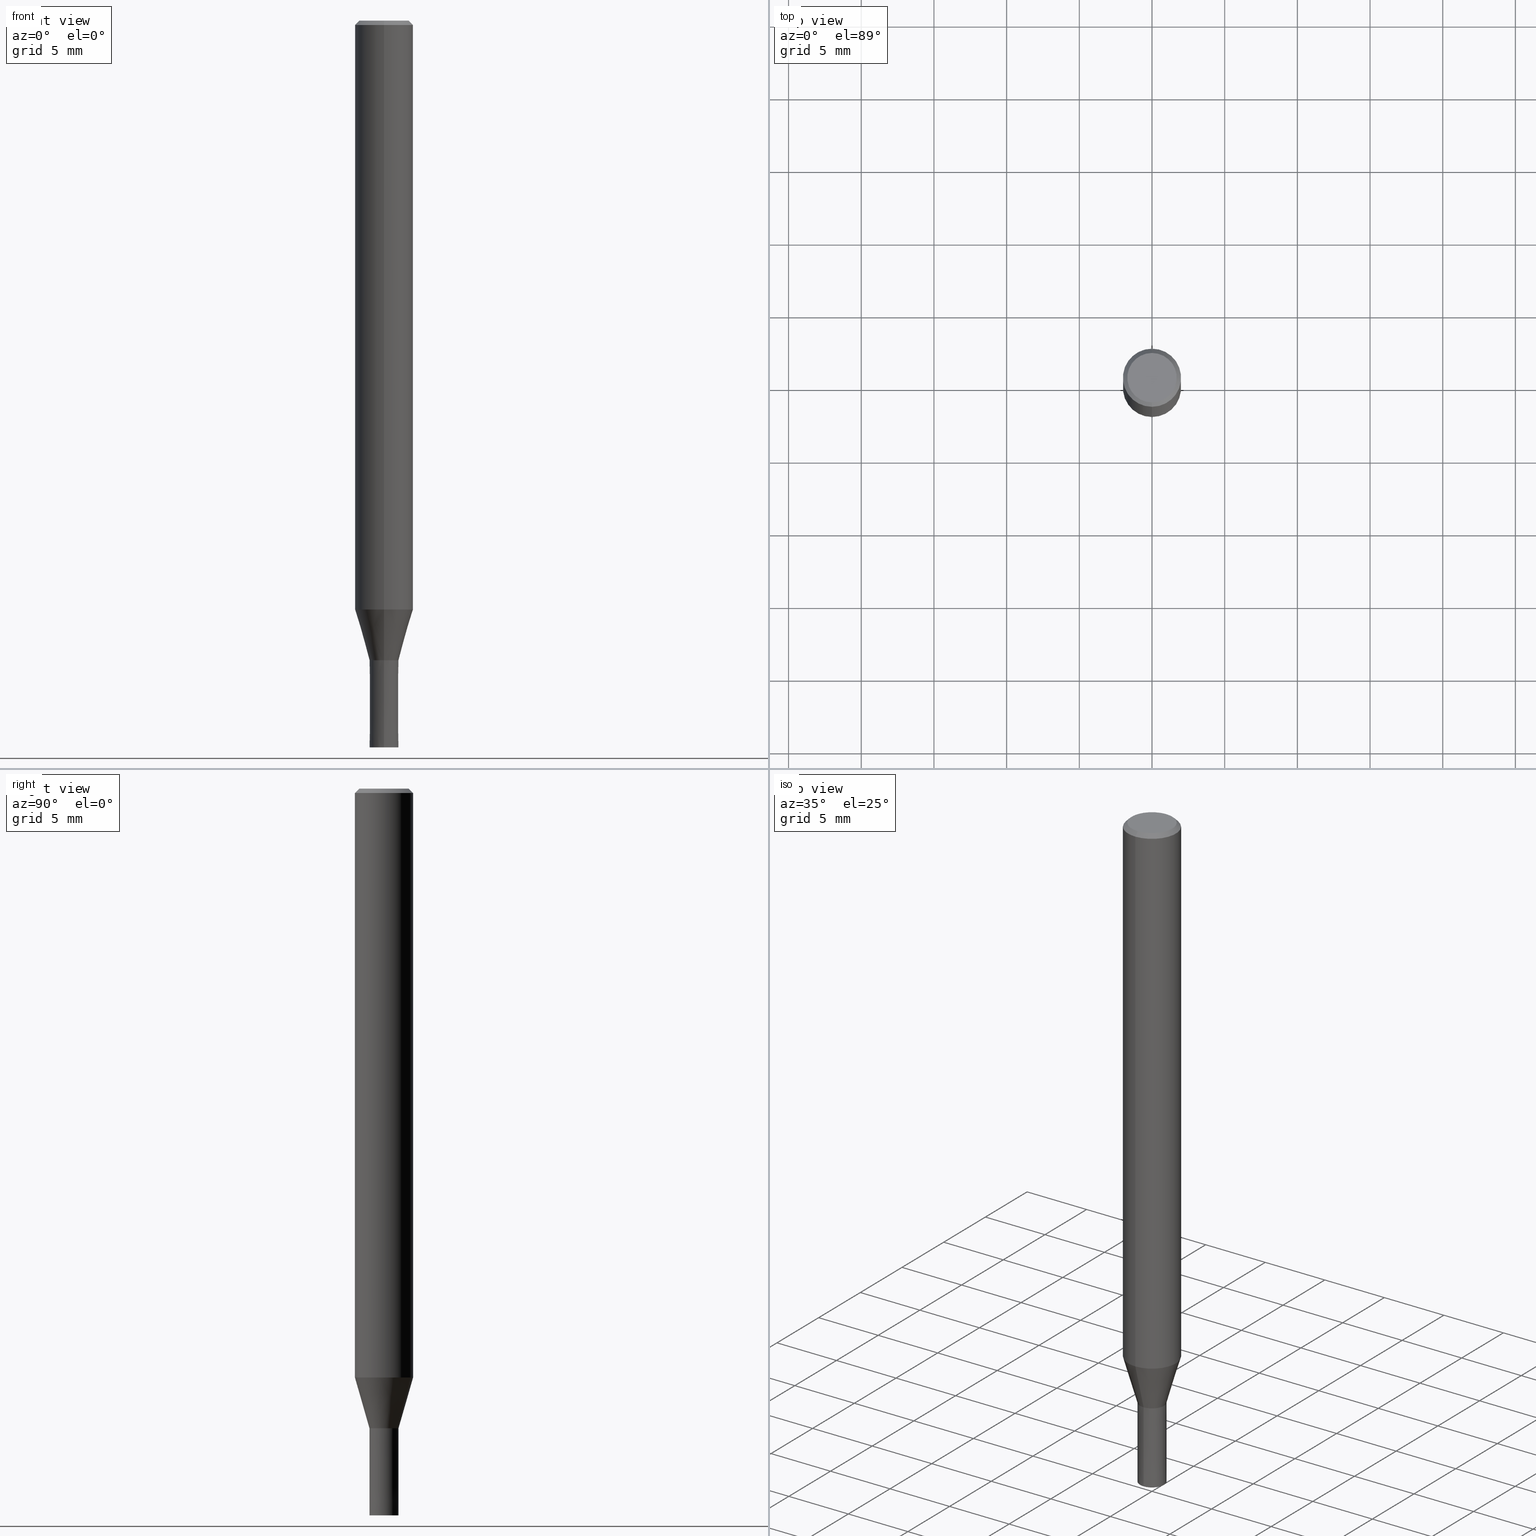
[diagram: canonical four-view strip — front | top / right | iso, engineering-drawing reading convention]
A machine part, canonical four-view strip (front | top / right | iso — engineering-drawing reading convention). The complete STEP part file that produces these views, byte-faithful:
ISO-10303-21;
HEADER;
FILE_DESCRIPTION(('no description'),'unknown implementation level');
FILE_NAME('CZS4020-0600-Huellk.stp','  ',('CIMSOURCE GmbH'),('CADClick - KiM GmbH - www.kimweb.de'),'unknown preprocess','ACIS','unknown authorization');
FILE_SCHEMA(('automotive_design'));
ENDSEC;
DATA;
#1=MECHANICAL_DESIGN_GEOMETRIC_PRESENTATION_REPRESENTATION(' ',(#14,#15,#16,#17,#18,#19,#20,#21,#22,#23,#24,#25,#26,#27,#28,#29,#30,#31,#32,#33,#34,#35,#36,#37,#38,#39,#40,#41,#42,#43,#44,#45,#46,#47,#48,#49,#50,#51,#52,#53,#54,#55,#56,#57,#58,#59,#60,#61,#62,#63,#64),#10);
#2=PRODUCT_DEFINITION_CONTEXT('',#65,'design');
#3=APPLICATION_PROTOCOL_DEFINITION('INTERNATIONAL STANDARD','automotive_design',1994,#65);
#4=PRODUCT_CATEGORY_RELATIONSHIP('NONE','NONE',#66,#67);
#5=SHAPE_DEFINITION_REPRESENTATION(#68,#69);
#6=PRODUCT_DEFINITION_CONTEXT('',#70,'design');
#7=APPLICATION_PROTOCOL_DEFINITION('INTERNATIONAL STANDARD','automotive_design',1994,#70);
#8=PRODUCT_CATEGORY_RELATIONSHIP('NONE','NONE',#71,#72);
#9=SHAPE_DEFINITION_REPRESENTATION(#73,#74);
#10= (GEOMETRIC_REPRESENTATION_CONTEXT(3)GLOBAL_UNCERTAINTY_ASSIGNED_CONTEXT((#77))GLOBAL_UNIT_ASSIGNED_CONTEXT((#79,#80,#81))REPRESENTATION_CONTEXT('NONE','WORKSPACE'));
#14=STYLED_ITEM('',(#83),#84);
#15=STYLED_ITEM('',(#85),#86);
#16=STYLED_ITEM('',(#87),#88);
#17=STYLED_ITEM('',(#89),#90);
#18=STYLED_ITEM('',(#91),#92);
#19=STYLED_ITEM('',(#93),#94);
#20=STYLED_ITEM('',(#95),#96);
#21=STYLED_ITEM('',(#97),#98);
#22=STYLED_ITEM('',(#99),#100);
#23=STYLED_ITEM('',(#101),#102);
#24=STYLED_ITEM('',(#103),#104);
#25=STYLED_ITEM('',(#105),#106);
#26=STYLED_ITEM('',(#107),#108);
#27=STYLED_ITEM('',(#109),#110);
#28=STYLED_ITEM('',(#111),#112);
#29=STYLED_ITEM('',(#113),#114);
#30=STYLED_ITEM('',(#115),#116);
#31=STYLED_ITEM('',(#117),#118);
#32=STYLED_ITEM('',(#119),#120);
#33=STYLED_ITEM('',(#121),#122);
#34=STYLED_ITEM('',(#123),#124);
#35=STYLED_ITEM('',(#125),#126);
#36=STYLED_ITEM('',(#127),#128);
#37=STYLED_ITEM('',(#129),#130);
#38=STYLED_ITEM('',(#131),#132);
#39=STYLED_ITEM('',(#133),#134);
#40=STYLED_ITEM('',(#135),#136);
#41=STYLED_ITEM('',(#137),#138);
#42=STYLED_ITEM('',(#139),#140);
#43=STYLED_ITEM('',(#141),#142);
#44=STYLED_ITEM('',(#143),#144);
#45=STYLED_ITEM('',(#145),#146);
#46=STYLED_ITEM('',(#147),#148);
#47=STYLED_ITEM('',(#149),#150);
#48=STYLED_ITEM('',(#151),#152);
#49=STYLED_ITEM('',(#153),#154);
#50=STYLED_ITEM('',(#155),#156);
#51=STYLED_ITEM('',(#157),#158);
#52=STYLED_ITEM('',(#159),#160);
#53=STYLED_ITEM('',(#161),#162);
#54=STYLED_ITEM('',(#163),#164);
#55=STYLED_ITEM('',(#165),#166);
#56=STYLED_ITEM('',(#167),#168);
#57=STYLED_ITEM('',(#169),#170);
#58=STYLED_ITEM('',(#171),#172);
#59=STYLED_ITEM('',(#173),#174);
#60=STYLED_ITEM('',(#175),#176);
#61=STYLED_ITEM('',(#177),#178);
#62=STYLED_ITEM('',(#179),#180);
#63=STYLED_ITEM('',(#181),#182);
#64=STYLED_ITEM('',(#183),#184);
#65=APPLICATION_CONTEXT(' ');
#66=PRODUCT_CATEGORY('part','NONE');
#67=PRODUCT_RELATED_PRODUCT_CATEGORY('detail',' ',(#185));
#68=PRODUCT_DEFINITION_SHAPE('NONE','NONE',#186);
#69=ADVANCED_BREP_SHAPE_REPRESENTATION('1',(#134,#187),#10);
#70=APPLICATION_CONTEXT(' ');
#71=PRODUCT_CATEGORY('part','NONE');
#72=PRODUCT_RELATED_PRODUCT_CATEGORY('detail',' ',(#188));
#73=PRODUCT_DEFINITION_SHAPE('NONE','NONE',#189);
#74=ADVANCED_BREP_SHAPE_REPRESENTATION('2',(#174,#190),#10);
#77=UNCERTAINTY_MEASURE_WITH_UNIT(LENGTH_MEASURE(1.0E-006),#79,'','');
#79= (CONVERSION_BASED_UNIT('MILLIMETRE',#193)LENGTH_UNIT()NAMED_UNIT(#196));
#80= (NAMED_UNIT(#198)PLANE_ANGLE_UNIT()SI_UNIT($,.RADIAN.));
#81= (NAMED_UNIT(#198)SOLID_ANGLE_UNIT()SI_UNIT($,.STERADIAN.));
#83=PRESENTATION_STYLE_ASSIGNMENT((#204));
#84=ADVANCED_FACE('',(#205),#206,.T.);
#85=PRESENTATION_STYLE_ASSIGNMENT((#207));
#86=EDGE_CURVE('',#146,#142,#208,.T.);
#87=PRESENTATION_STYLE_ASSIGNMENT((#209));
#88=EDGE_CURVE('',#130,#128,#210,.T.);
#89=PRESENTATION_STYLE_ASSIGNMENT((#211));
#90=ADVANCED_FACE('',(#212),#213,.T.);
#91=PRESENTATION_STYLE_ASSIGNMENT((#214));
#92=EDGE_CURVE('',#142,#140,#215,.T.);
#93=PRESENTATION_STYLE_ASSIGNMENT((#216));
#94=VERTEX_POINT('',#217);
#95=PRESENTATION_STYLE_ASSIGNMENT((#218));
#96=EDGE_CURVE('',#118,#94,#219,.T.);
#97=PRESENTATION_STYLE_ASSIGNMENT((#220));
#98=ADVANCED_FACE('',(#221),#222,.T.);
#99=PRESENTATION_STYLE_ASSIGNMENT((#223));
#100=EDGE_CURVE('',#140,#142,#224,.T.);
#101=PRESENTATION_STYLE_ASSIGNMENT((#225));
#102=ADVANCED_FACE('',(#226),#227,.T.);
#103=PRESENTATION_STYLE_ASSIGNMENT((#228));
#104=VERTEX_POINT('',#229);
#105=PRESENTATION_STYLE_ASSIGNMENT((#230));
#106=ADVANCED_FACE('',(#231),#232,.T.);
#107=PRESENTATION_STYLE_ASSIGNMENT((#233));
#108=VERTEX_POINT('',#234);
#109=PRESENTATION_STYLE_ASSIGNMENT((#235));
#110=EDGE_CURVE('',#94,#104,#236,.T.);
#111=PRESENTATION_STYLE_ASSIGNMENT((#237));
#112=ADVANCED_FACE('',(#238),#239,.T.);
#113=PRESENTATION_STYLE_ASSIGNMENT((#240));
#114=VERTEX_POINT('',#241);
#115=PRESENTATION_STYLE_ASSIGNMENT((#242));
#116=VERTEX_POINT('',#243);
#117=PRESENTATION_STYLE_ASSIGNMENT((#244));
#118=VERTEX_POINT('',#245);
#119=PRESENTATION_STYLE_ASSIGNMENT((#246));
#120=EDGE_CURVE('',#140,#108,#247,.T.);
#121=PRESENTATION_STYLE_ASSIGNMENT((#248));
#122=EDGE_CURVE('',#108,#146,#249,.T.);
#123=PRESENTATION_STYLE_ASSIGNMENT((#250));
#124=VERTEX_POINT('',#251);
#125=PRESENTATION_STYLE_ASSIGNMENT((#252));
#126=EDGE_CURVE('',#144,#116,#253,.T.);
#127=PRESENTATION_STYLE_ASSIGNMENT((#254));
#128=VERTEX_POINT('',#255);
#129=PRESENTATION_STYLE_ASSIGNMENT((#256));
#130=VERTEX_POINT('',#257);
#131=PRESENTATION_STYLE_ASSIGNMENT((#258));
#132=EDGE_CURVE('',#124,#114,#259,.T.);
#133=PRESENTATION_STYLE_ASSIGNMENT((#260));
#134=MANIFOLD_SOLID_BREP('1',#261);
#135=PRESENTATION_STYLE_ASSIGNMENT((#262));
#136=EDGE_CURVE('',#142,#130,#263,.T.);
#137=PRESENTATION_STYLE_ASSIGNMENT((#264));
#138=EDGE_CURVE('',#114,#144,#265,.T.);
#139=PRESENTATION_STYLE_ASSIGNMENT((#266));
#140=VERTEX_POINT('',#267);
#141=PRESENTATION_STYLE_ASSIGNMENT((#268));
#142=VERTEX_POINT('',#269);
#143=PRESENTATION_STYLE_ASSIGNMENT((#270));
#144=VERTEX_POINT('',#271);
#145=PRESENTATION_STYLE_ASSIGNMENT((#272));
#146=VERTEX_POINT('',#273);
#147=PRESENTATION_STYLE_ASSIGNMENT((#274));
#148=ADVANCED_FACE('',(#275),#276,.T.);
#149=PRESENTATION_STYLE_ASSIGNMENT((#277));
#150=EDGE_CURVE('',#128,#140,#278,.T.);
#151=PRESENTATION_STYLE_ASSIGNMENT((#279));
#152=EDGE_CURVE('',#116,#144,#280,.T.);
#153=PRESENTATION_STYLE_ASSIGNMENT((#281));
#154=ADVANCED_FACE('',(#282),#283,.T.);
#155=PRESENTATION_STYLE_ASSIGNMENT((#284));
#156=ADVANCED_FACE('',(#285),#286,.T.);
#157=PRESENTATION_STYLE_ASSIGNMENT((#287));
#158=EDGE_CURVE('',#170,#118,#288,.T.);
#159=PRESENTATION_STYLE_ASSIGNMENT((#289));
#160=EDGE_CURVE('',#116,#124,#290,.T.);
#161=PRESENTATION_STYLE_ASSIGNMENT((#291));
#162=EDGE_CURVE('',#114,#124,#292,.T.);
#163=PRESENTATION_STYLE_ASSIGNMENT((#293));
#164=EDGE_CURVE('',#118,#170,#294,.T.);
#165=PRESENTATION_STYLE_ASSIGNMENT((#295));
#166=EDGE_CURVE('',#104,#94,#296,.T.);
#167=PRESENTATION_STYLE_ASSIGNMENT((#297));
#168=EDGE_CURVE('',#128,#130,#298,.T.);
#169=PRESENTATION_STYLE_ASSIGNMENT((#299));
#170=VERTEX_POINT('',#300);
#171=PRESENTATION_STYLE_ASSIGNMENT((#301));
#172=ADVANCED_FACE('',(#302),#303,.T.);
#173=PRESENTATION_STYLE_ASSIGNMENT((#304));
#174=MANIFOLD_SOLID_BREP('2',#305);
#175=PRESENTATION_STYLE_ASSIGNMENT((#306));
#176=ADVANCED_FACE('',(#307,#308),#309,.T.);
#177=PRESENTATION_STYLE_ASSIGNMENT((#310));
#178=EDGE_CURVE('',#146,#108,#311,.T.);
#179=PRESENTATION_STYLE_ASSIGNMENT((#312));
#180=ADVANCED_FACE('',(#313),#314,.T.);
#181=PRESENTATION_STYLE_ASSIGNMENT((#315));
#182=ADVANCED_FACE('',(#316),#317,.T.);
#183=PRESENTATION_STYLE_ASSIGNMENT((#318));
#184=EDGE_CURVE('',#104,#170,#319,.T.);
#185=PRODUCT('1','1','PART-1-DESC',(#320));
#186=PRODUCT_DEFINITION('NONE','NONE',#321,#2);
#187=AXIS2_PLACEMENT_3D('',#322,#323,#324);
#188=PRODUCT('2','2','PART-2-DESC',(#325));
#189=PRODUCT_DEFINITION('NONE','NONE',#326,#6);
#190=AXIS2_PLACEMENT_3D('',#327,#328,#329);
#193=LENGTH_MEASURE_WITH_UNIT(LENGTH_MEASURE(1.0),#330);
#196=DIMENSIONAL_EXPONENTS(1.0,0.0,0.0,0.0,0.0,0.0,0.0);
#198=DIMENSIONAL_EXPONENTS(0.0,0.0,0.0,0.0,0.0,0.0,0.0);
#204=SURFACE_STYLE_USAGE(.BOTH.,#331);
#205=FACE_OUTER_BOUND('',#332,.T.);
#206=PLANE('',#333);
#207=CURVE_STYLE('',#334,POSITIVE_LENGTH_MEASURE(1.0E-006),#335);
#208=LINE('',#336,#337);
#209=CURVE_STYLE('',#338,POSITIVE_LENGTH_MEASURE(1.0E-006),#339);
#210=CIRCLE('',#340,1.7);
#211=SURFACE_STYLE_USAGE(.BOTH.,#341);
#212=FACE_OUTER_BOUND('',#342,.T.);
#213=CONICAL_SURFACE('',#343,1.85,0.785398163397453);
#214=CURVE_STYLE('',#344,POSITIVE_LENGTH_MEASURE(1.0E-006),#345);
#215=CIRCLE('',#346,2.0);
#216=POINT_STYLE(' ',#347,POSITIVE_LENGTH_MEASURE(1.0E-006),#348);
#217=CARTESIAN_POINT('',(1.224483893187E-016,-0.9999,-44.0));
#218=CURVE_STYLE('',#349,POSITIVE_LENGTH_MEASURE(1.0E-006),#350);
#219=LINE('',#351,#352);
#220=SURFACE_STYLE_USAGE(.BOTH.,#353);
#221=FACE_OUTER_BOUND('',#354,.T.);
#222=PLANE('',#355);
#223=CURVE_STYLE('',#356,POSITIVE_LENGTH_MEASURE(1.0E-006),#357);
#224=CIRCLE('',#358,2.0);
#225=SURFACE_STYLE_USAGE(.BOTH.,#359);
#226=FACE_OUTER_BOUND('',#360,.T.);
#227=PLANE('',#361);
#228=POINT_STYLE(' ',#362,POSITIVE_LENGTH_MEASURE(1.0E-006),#363);
#229=CARTESIAN_POINT('',(0.0,0.9999,-44.0));
#230=SURFACE_STYLE_USAGE(.BOTH.,#364);
#231=FACE_OUTER_BOUND('',#365,.T.);
#232=CONICAL_SURFACE('',#366,1.49995,0.279284171542493);
#233=POINT_STYLE(' ',#367,POSITIVE_LENGTH_MEASURE(1.0E-006),#368);
#234=CARTESIAN_POINT('',(0.0,2.0,-40.513));
#235=CURVE_STYLE('',#369,POSITIVE_LENGTH_MEASURE(1.0E-006),#370);
#236=CIRCLE('',#371,0.9999);
#237=SURFACE_STYLE_USAGE(.BOTH.,#372);
#238=FACE_OUTER_BOUND('',#373,.T.);
#239=CYLINDRICAL_SURFACE('',#374,2.0);
#240=POINT_STYLE(' ',#375,POSITIVE_LENGTH_MEASURE(1.0E-006),#376);
#241=CARTESIAN_POINT('',(0.0,1.99995,-40.513));
#242=POINT_STYLE(' ',#377,POSITIVE_LENGTH_MEASURE(1.0E-006),#378);
#243=CARTESIAN_POINT('',(1.22454512350469E-016,-0.99995,-44.0));
#244=POINT_STYLE(' ',#379,POSITIVE_LENGTH_MEASURE(1.0E-006),#380);
#245=CARTESIAN_POINT('',(1.22460635382238E-016,-1.0,-50.0));
#246=CURVE_STYLE('',#381,POSITIVE_LENGTH_MEASURE(1.0E-006),#382);
#247=LINE('',#383,#384);
#248=CURVE_STYLE('',#385,POSITIVE_LENGTH_MEASURE(1.0E-006),#386);
#249=CIRCLE('',#387,2.0);
#250=POINT_STYLE(' ',#388,POSITIVE_LENGTH_MEASURE(1.0E-006),#389);
#251=CARTESIAN_POINT('',(2.44915147732706E-016,-1.99995,-40.513));
#252=CURVE_STYLE('',#390,POSITIVE_LENGTH_MEASURE(1.0E-006),#391);
#253=CIRCLE('',#392,0.99995);
#254=POINT_STYLE(' ',#393,POSITIVE_LENGTH_MEASURE(1.0E-006),#394);
#255=CARTESIAN_POINT('',(0.0,1.7,0.0));
#256=POINT_STYLE(' ',#395,POSITIVE_LENGTH_MEASURE(1.0E-006),#396);
#257=CARTESIAN_POINT('',(2.08183080149804E-016,-1.7,0.0));
#258=CURVE_STYLE('',#397,POSITIVE_LENGTH_MEASURE(1.0E-006),#398);
#259=CIRCLE('',#399,1.99995);
#260=SURFACE_STYLE_USAGE(.BOTH.,#400);
#261=CLOSED_SHELL('',(#180,#112,#90,#176,#182,#148,#172,#106,#84));
#262=CURVE_STYLE('',#401,POSITIVE_LENGTH_MEASURE(1.0E-006),#402);
#263=LINE('',#403,#404);
#264=CURVE_STYLE('',#405,POSITIVE_LENGTH_MEASURE(1.0E-006),#406);
#265=LINE('',#407,#408);
#266=POINT_STYLE(' ',#409,POSITIVE_LENGTH_MEASURE(1.0E-006),#410);
#267=CARTESIAN_POINT('',(0.0,2.0,-0.299999999999997));
#268=POINT_STYLE(' ',#411,POSITIVE_LENGTH_MEASURE(1.0E-006),#412);
#269=CARTESIAN_POINT('',(2.44921270764475E-016,-2.0,-0.299999999999997));
#270=POINT_STYLE(' ',#413,POSITIVE_LENGTH_MEASURE(1.0E-006),#414);
#271=CARTESIAN_POINT('',(0.0,0.99995,-44.0));
#272=POINT_STYLE(' ',#415,POSITIVE_LENGTH_MEASURE(1.0E-006),#416);
#273=CARTESIAN_POINT('',(2.44921270764475E-016,-2.0,-40.513));
#274=SURFACE_STYLE_USAGE(.BOTH.,#417);
#275=FACE_OUTER_BOUND('',#418,.T.);
#276=CONICAL_SURFACE('',#419,1.85,0.785398163397453);
#277=CURVE_STYLE('',#420,POSITIVE_LENGTH_MEASURE(1.0E-006),#421);
#278=LINE('',#422,#423);
#279=CURVE_STYLE('',#424,POSITIVE_LENGTH_MEASURE(1.0E-006),#425);
#280=CIRCLE('',#426,0.99995);
#281=SURFACE_STYLE_USAGE(.BOTH.,#427);
#282=FACE_OUTER_BOUND('',#428,.T.);
#283=CONICAL_SURFACE('',#429,0.99995,1.66666666651216E-005);
#284=SURFACE_STYLE_USAGE(.BOTH.,#430);
#285=FACE_OUTER_BOUND('',#431,.T.);
#286=CONICAL_SURFACE('',#432,0.99995,1.66666666651216E-005);
#287=CURVE_STYLE('',#433,POSITIVE_LENGTH_MEASURE(1.0E-006),#434);
#288=CIRCLE('',#435,1.0);
#289=CURVE_STYLE('',#436,POSITIVE_LENGTH_MEASURE(1.0E-006),#437);
#290=LINE('',#438,#439);
#291=CURVE_STYLE('',#440,POSITIVE_LENGTH_MEASURE(1.0E-006),#441);
#292=CIRCLE('',#442,1.99995);
#293=CURVE_STYLE('',#443,POSITIVE_LENGTH_MEASURE(1.0E-006),#444);
#294=CIRCLE('',#445,1.0);
#295=CURVE_STYLE('',#446,POSITIVE_LENGTH_MEASURE(1.0E-006),#447);
#296=CIRCLE('',#448,0.9999);
#297=CURVE_STYLE('',#449,POSITIVE_LENGTH_MEASURE(1.0E-006),#450);
#298=CIRCLE('',#451,1.7);
#299=POINT_STYLE(' ',#452,POSITIVE_LENGTH_MEASURE(1.0E-006),#453);
#300=CARTESIAN_POINT('',(0.0,1.0,-50.0));
#301=SURFACE_STYLE_USAGE(.BOTH.,#454);
#302=FACE_OUTER_BOUND('',#455,.T.);
#303=CYLINDRICAL_SURFACE('',#456,2.0);
#304=SURFACE_STYLE_USAGE(.BOTH.,#457);
#305=CLOSED_SHELL('',(#154,#98,#156,#102));
#306=SURFACE_STYLE_USAGE(.BOTH.,#458);
#307=FACE_OUTER_BOUND('',#459,.T.);
#308=FACE_BOUND('',#460,.T.);
#309=PLANE('',#461);
#310=CURVE_STYLE('',#462,POSITIVE_LENGTH_MEASURE(1.0E-006),#463);
#311=CIRCLE('',#464,2.0);
#312=SURFACE_STYLE_USAGE(.BOTH.,#465);
#313=FACE_OUTER_BOUND('',#466,.T.);
#314=CONICAL_SURFACE('',#467,1.49995,0.279284171542493);
#315=SURFACE_STYLE_USAGE(.BOTH.,#468);
#316=FACE_OUTER_BOUND('',#469,.T.);
#317=PLANE('',#470);
#318=CURVE_STYLE('',#471,POSITIVE_LENGTH_MEASURE(1.0E-006),#472);
#319=LINE('',#473,#474);
#320=PRODUCT_CONTEXT('',#65,'mechanical');
#321=PRODUCT_DEFINITION_FORMATION_WITH_SPECIFIED_SOURCE(' ','NONE',#185,.NOT_KNOWN.);
#322=CARTESIAN_POINT('',(0.0,0.0,0.0));
#323=DIRECTION('',(0.0,0.0,1.0));
#324=DIRECTION('',(1.0,0.0,0.0));
#325=PRODUCT_CONTEXT('',#70,'mechanical');
#326=PRODUCT_DEFINITION_FORMATION_WITH_SPECIFIED_SOURCE(' ','NONE',#188,.NOT_KNOWN.);
#327=CARTESIAN_POINT('',(0.0,0.0,0.0));
#328=DIRECTION('',(0.0,0.0,1.0));
#329=DIRECTION('',(1.0,0.0,0.0));
#330= (NAMED_UNIT(#196)LENGTH_UNIT()SI_UNIT(.MILLI.,.METRE.));
#331=SURFACE_SIDE_STYLE('',(#476));
#332=EDGE_LOOP('',(#477,#478));
#333=AXIS2_PLACEMENT_3D('',#479,#480,#481);
#334=DRAUGHTING_PRE_DEFINED_CURVE_FONT('continuous');
#335=COLOUR_RGB('',0.498039215803146,0.498039215803146,0.498039215803146);
#336=CARTESIAN_POINT('',(2.44921270764475E-016,-2.0,-20.4065));
#337=VECTOR('',#482,1.0);
#338=DRAUGHTING_PRE_DEFINED_CURVE_FONT('continuous');
#339=COLOUR_RGB('',0.498039215803146,0.498039215803146,0.498039215803146);
#340=AXIS2_PLACEMENT_3D('',#483,#484,#485);
#341=SURFACE_SIDE_STYLE('',(#486));
#342=EDGE_LOOP('',(#487,#488,#489,#490));
#343=AXIS2_PLACEMENT_3D('',#491,#492,#493);
#344=DRAUGHTING_PRE_DEFINED_CURVE_FONT('continuous');
#345=COLOUR_RGB('',0.498039215803146,0.498039215803146,0.498039215803146);
#346=AXIS2_PLACEMENT_3D('',#494,#495,#496);
#347=PRE_DEFINED_MARKER('');
#348=COLOUR_RGB('',0.800000011920929,0.800000011920929,0.800000011920929);
#349=DRAUGHTING_PRE_DEFINED_CURVE_FONT('continuous');
#350=COLOUR_RGB('',0.800000011920929,0.800000011920929,0.800000011920929);
#351=CARTESIAN_POINT('',(1.22454512350469E-016,-0.99995,-47.0));
#352=VECTOR('',#497,1.0);
#353=SURFACE_SIDE_STYLE('',(#498));
#354=EDGE_LOOP('',(#499,#500));
#355=AXIS2_PLACEMENT_3D('',#501,#502,#503);
#356=DRAUGHTING_PRE_DEFINED_CURVE_FONT('continuous');
#357=COLOUR_RGB('',0.498039215803146,0.498039215803146,0.498039215803146);
#358=AXIS2_PLACEMENT_3D('',#504,#505,#506);
#359=SURFACE_SIDE_STYLE('',(#507));
#360=EDGE_LOOP('',(#508,#509));
#361=AXIS2_PLACEMENT_3D('',#510,#511,#512);
#362=PRE_DEFINED_MARKER('');
#363=COLOUR_RGB('',0.800000011920929,0.800000011920929,0.800000011920929);
#364=SURFACE_SIDE_STYLE('',(#513));
#365=EDGE_LOOP('',(#514,#515,#516,#517));
#366=AXIS2_PLACEMENT_3D('',#518,#519,#520);
#367=PRE_DEFINED_MARKER('');
#368=COLOUR_RGB('',0.498039215803146,0.498039215803146,0.498039215803146);
#369=DRAUGHTING_PRE_DEFINED_CURVE_FONT('continuous');
#370=COLOUR_RGB('',0.800000011920929,0.800000011920929,0.800000011920929);
#371=AXIS2_PLACEMENT_3D('',#521,#522,#523);
#372=SURFACE_SIDE_STYLE('',(#524));
#373=EDGE_LOOP('',(#525,#526,#527,#528));
#374=AXIS2_PLACEMENT_3D('',#529,#530,#531);
#375=PRE_DEFINED_MARKER('');
#376=COLOUR_RGB('',0.498039215803146,0.498039215803146,0.498039215803146);
#377=PRE_DEFINED_MARKER('');
#378=COLOUR_RGB('',0.498039215803146,0.498039215803146,0.498039215803146);
#379=PRE_DEFINED_MARKER('');
#380=COLOUR_RGB('',0.800000011920929,0.800000011920929,0.800000011920929);
#381=DRAUGHTING_PRE_DEFINED_CURVE_FONT('continuous');
#382=COLOUR_RGB('',0.498039215803146,0.498039215803146,0.498039215803146);
#383=CARTESIAN_POINT('',(-2.44921270764475E-016,2.0,-20.4065));
#384=VECTOR('',#532,1.0);
#385=DRAUGHTING_PRE_DEFINED_CURVE_FONT('continuous');
#386=COLOUR_RGB('',0.498039215803146,0.498039215803146,0.498039215803146);
#387=AXIS2_PLACEMENT_3D('',#533,#534,#535);
#388=PRE_DEFINED_MARKER('');
#389=COLOUR_RGB('',0.498039215803146,0.498039215803146,0.498039215803146);
#390=DRAUGHTING_PRE_DEFINED_CURVE_FONT('continuous');
#391=COLOUR_RGB('',0.498039215803146,0.498039215803146,0.498039215803146);
#392=AXIS2_PLACEMENT_3D('',#536,#537,#538);
#393=PRE_DEFINED_MARKER('');
#394=COLOUR_RGB('',0.498039215803146,0.498039215803146,0.498039215803146);
#395=PRE_DEFINED_MARKER('');
#396=COLOUR_RGB('',0.498039215803146,0.498039215803146,0.498039215803146);
#397=DRAUGHTING_PRE_DEFINED_CURVE_FONT('continuous');
#398=COLOUR_RGB('',0.498039215803146,0.498039215803146,0.498039215803146);
#399=AXIS2_PLACEMENT_3D('',#539,#540,#541);
#400=SURFACE_SIDE_STYLE('',(#542));
#401=DRAUGHTING_PRE_DEFINED_CURVE_FONT('continuous');
#402=COLOUR_RGB('',0.498039215803146,0.498039215803146,0.498039215803146);
#403=CARTESIAN_POINT('',(2.2655217545714E-016,-1.85,-0.149999999999999));
#404=VECTOR('',#543,1.0);
#405=DRAUGHTING_PRE_DEFINED_CURVE_FONT('continuous');
#406=COLOUR_RGB('',0.498039215803146,0.498039215803146,0.498039215803146);
#407=CARTESIAN_POINT('',(-1.83684830041587E-016,1.49995,-42.2565));
#408=VECTOR('',#544,1.0);
#409=PRE_DEFINED_MARKER('');
#410=COLOUR_RGB('',0.498039215803146,0.498039215803146,0.498039215803146);
#411=PRE_DEFINED_MARKER('');
#412=COLOUR_RGB('',0.498039215803146,0.498039215803146,0.498039215803146);
#413=PRE_DEFINED_MARKER('');
#414=COLOUR_RGB('',0.498039215803146,0.498039215803146,0.498039215803146);
#415=PRE_DEFINED_MARKER('');
#416=COLOUR_RGB('',0.498039215803146,0.498039215803146,0.498039215803146);
#417=SURFACE_SIDE_STYLE('',(#545));
#418=EDGE_LOOP('',(#546,#547,#548,#549));
#419=AXIS2_PLACEMENT_3D('',#550,#551,#552);
#420=DRAUGHTING_PRE_DEFINED_CURVE_FONT('continuous');
#421=COLOUR_RGB('',0.498039215803146,0.498039215803146,0.498039215803146);
#422=CARTESIAN_POINT('',(-2.2655217545714E-016,1.85,-0.149999999999999));
#423=VECTOR('',#553,1.0);
#424=DRAUGHTING_PRE_DEFINED_CURVE_FONT('continuous');
#425=COLOUR_RGB('',0.498039215803146,0.498039215803146,0.498039215803146);
#426=AXIS2_PLACEMENT_3D('',#554,#555,#556);
#427=SURFACE_SIDE_STYLE('',(#557));
#428=EDGE_LOOP('',(#558,#559,#560,#561));
#429=AXIS2_PLACEMENT_3D('',#562,#563,#564);
#430=SURFACE_SIDE_STYLE('',(#565));
#431=EDGE_LOOP('',(#566,#567,#568,#569));
#432=AXIS2_PLACEMENT_3D('',#570,#571,#572);
#433=DRAUGHTING_PRE_DEFINED_CURVE_FONT('continuous');
#434=COLOUR_RGB('',0.800000011920929,0.800000011920929,0.800000011920929);
#435=AXIS2_PLACEMENT_3D('',#573,#574,#575);
#436=DRAUGHTING_PRE_DEFINED_CURVE_FONT('continuous');
#437=COLOUR_RGB('',0.498039215803146,0.498039215803146,0.498039215803146);
#438=CARTESIAN_POINT('',(1.83684830041587E-016,-1.49995,-42.2565));
#439=VECTOR('',#576,1.0);
#440=DRAUGHTING_PRE_DEFINED_CURVE_FONT('continuous');
#441=COLOUR_RGB('',0.498039215803146,0.498039215803146,0.498039215803146);
#442=AXIS2_PLACEMENT_3D('',#577,#578,#579);
#443=DRAUGHTING_PRE_DEFINED_CURVE_FONT('continuous');
#444=COLOUR_RGB('',0.800000011920929,0.800000011920929,0.800000011920929);
#445=AXIS2_PLACEMENT_3D('',#580,#581,#582);
#446=DRAUGHTING_PRE_DEFINED_CURVE_FONT('continuous');
#447=COLOUR_RGB('',0.800000011920929,0.800000011920929,0.800000011920929);
#448=AXIS2_PLACEMENT_3D('',#583,#584,#585);
#449=DRAUGHTING_PRE_DEFINED_CURVE_FONT('continuous');
#450=COLOUR_RGB('',0.498039215803146,0.498039215803146,0.498039215803146);
#451=AXIS2_PLACEMENT_3D('',#586,#587,#588);
#452=PRE_DEFINED_MARKER('');
#453=COLOUR_RGB('',0.800000011920929,0.800000011920929,0.800000011920929);
#454=SURFACE_SIDE_STYLE('',(#589));
#455=EDGE_LOOP('',(#590,#591,#592,#593));
#456=AXIS2_PLACEMENT_3D('',#594,#595,#596);
#457=SURFACE_SIDE_STYLE('',(#597));
#458=SURFACE_SIDE_STYLE('',(#598));
#459=EDGE_LOOP('',(#599,#600));
#460=EDGE_LOOP('',(#601,#602));
#461=AXIS2_PLACEMENT_3D('',#603,#604,#605);
#462=DRAUGHTING_PRE_DEFINED_CURVE_FONT('continuous');
#463=COLOUR_RGB('',0.498039215803146,0.498039215803146,0.498039215803146);
#464=AXIS2_PLACEMENT_3D('',#606,#607,#608);
#465=SURFACE_SIDE_STYLE('',(#609));
#466=EDGE_LOOP('',(#610,#611,#612,#613));
#467=AXIS2_PLACEMENT_3D('',#614,#615,#616);
#468=SURFACE_SIDE_STYLE('',(#617));
#469=EDGE_LOOP('',(#618,#619));
#470=AXIS2_PLACEMENT_3D('',#620,#621,#622);
#471=DRAUGHTING_PRE_DEFINED_CURVE_FONT('continuous');
#472=COLOUR_RGB('',0.800000011920929,0.800000011920929,0.800000011920929);
#473=CARTESIAN_POINT('',(-1.22454512350469E-016,0.99995,-47.0));
#474=VECTOR('',#623,1.0);
#476=SURFACE_STYLE_FILL_AREA(#624);
#477=ORIENTED_EDGE('',*,*,#126,.T.);
#478=ORIENTED_EDGE('',*,*,#152,.T.);
#479=CARTESIAN_POINT('',(0.0,0.499975,-44.0));
#480=DIRECTION('',(0.0,0.0,-1.0));
#481=DIRECTION('',(0.0,1.0,0.0));
#482=DIRECTION('',(-0.0,-0.0,1.0));
#483=CARTESIAN_POINT('',(0.0,0.0,0.0));
#484=DIRECTION('',(0.0,0.0,-1.0));
#485=DIRECTION('',(0.0,1.0,0.0));
#486=SURFACE_STYLE_FILL_AREA(#625);
#487=ORIENTED_EDGE('',*,*,#150,.F.);
#488=ORIENTED_EDGE('',*,*,#168,.T.);
#489=ORIENTED_EDGE('',*,*,#136,.F.);
#490=ORIENTED_EDGE('',*,*,#100,.F.);
#491=CARTESIAN_POINT('',(0.0,0.0,-0.149999999999999));
#492=DIRECTION('',(0.0,-0.0,-1.0));
#493=DIRECTION('',(0.0,1.0,0.0));
#494=CARTESIAN_POINT('',(0.0,0.0,-0.299999999999997));
#495=DIRECTION('',(0.0,0.0,-1.0));
#496=DIRECTION('',(0.0,1.0,0.0));
#497=DIRECTION('',(-2.04101058942026E-021,1.666666666435E-005,0.999999999861111));
#498=SURFACE_STYLE_FILL_AREA(#626);
#499=ORIENTED_EDGE('',*,*,#166,.F.);
#500=ORIENTED_EDGE('',*,*,#110,.F.);
#501=CARTESIAN_POINT('',(0.0,0.49995,-44.0));
#502=DIRECTION('',(-0.0,0.0,1.0));
#503=DIRECTION('',(0.0,-1.0,0.0));
#504=CARTESIAN_POINT('',(0.0,0.0,-0.299999999999997));
#505=DIRECTION('',(0.0,0.0,-1.0));
#506=DIRECTION('',(0.0,1.0,0.0));
#507=SURFACE_STYLE_FILL_AREA(#627);
#508=ORIENTED_EDGE('',*,*,#158,.T.);
#509=ORIENTED_EDGE('',*,*,#164,.T.);
#510=CARTESIAN_POINT('',(0.0,0.4975,-50.0));
#511=DIRECTION('',(0.0,0.0,-1.0));
#512=DIRECTION('',(0.0,1.0,0.0));
#513=SURFACE_STYLE_FILL_AREA(#628);
#514=ORIENTED_EDGE('',*,*,#138,.T.);
#515=ORIENTED_EDGE('',*,*,#152,.F.);
#516=ORIENTED_EDGE('',*,*,#160,.T.);
#517=ORIENTED_EDGE('',*,*,#132,.T.);
#518=CARTESIAN_POINT('',(0.0,0.0,-42.2565));
#519=DIRECTION('',(-0.0,-0.0,1.0));
#520=DIRECTION('',(0.0,1.0,0.0));
#521=CARTESIAN_POINT('',(0.0,0.0,-44.0));
#522=DIRECTION('',(0.0,0.0,-1.0));
#523=DIRECTION('',(0.0,1.0,0.0));
#524=SURFACE_STYLE_FILL_AREA(#629);
#525=ORIENTED_EDGE('',*,*,#120,.F.);
#526=ORIENTED_EDGE('',*,*,#100,.T.);
#527=ORIENTED_EDGE('',*,*,#86,.F.);
#528=ORIENTED_EDGE('',*,*,#122,.F.);
#529=CARTESIAN_POINT('',(0.0,0.0,-20.4065));
#530=DIRECTION('',(-0.0,-0.0,1.0));
#531=DIRECTION('',(0.0,1.0,0.0));
#532=DIRECTION('',(0.0,0.0,-1.0));
#533=CARTESIAN_POINT('',(0.0,0.0,-40.513));
#534=DIRECTION('',(0.0,0.0,-1.0));
#535=DIRECTION('',(0.0,1.0,0.0));
#536=CARTESIAN_POINT('',(0.0,0.0,-44.0));
#537=DIRECTION('',(0.0,0.0,-1.0));
#538=DIRECTION('',(0.0,1.0,0.0));
#539=CARTESIAN_POINT('',(0.0,0.0,-40.513));
#540=DIRECTION('',(0.0,0.0,-1.0));
#541=DIRECTION('',(0.0,1.0,0.0));
#542=SURFACE_STYLE_FILL_AREA(#630);
#543=DIRECTION('',(-8.6592745707194E-017,0.707106781186551,0.707106781186544));
#544=DIRECTION('',(3.3758432755158E-017,-0.275667626987133,-0.961253015304131));
#545=SURFACE_STYLE_FILL_AREA(#631);
#546=ORIENTED_EDGE('',*,*,#150,.T.);
#547=ORIENTED_EDGE('',*,*,#92,.F.);
#548=ORIENTED_EDGE('',*,*,#136,.T.);
#549=ORIENTED_EDGE('',*,*,#88,.T.);
#550=CARTESIAN_POINT('',(0.0,0.0,-0.149999999999999));
#551=DIRECTION('',(0.0,-0.0,-1.0));
#552=DIRECTION('',(0.0,1.0,0.0));
#553=DIRECTION('',(-8.6592745707194E-017,0.707106781186551,-0.707106781186544));
#554=CARTESIAN_POINT('',(0.0,0.0,-44.0));
#555=DIRECTION('',(0.0,0.0,-1.0));
#556=DIRECTION('',(0.0,1.0,0.0));
#557=SURFACE_STYLE_FILL_AREA(#632);
#558=ORIENTED_EDGE('',*,*,#184,.F.);
#559=ORIENTED_EDGE('',*,*,#166,.T.);
#560=ORIENTED_EDGE('',*,*,#96,.F.);
#561=ORIENTED_EDGE('',*,*,#158,.F.);
#562=CARTESIAN_POINT('',(0.0,0.0,-47.0));
#563=DIRECTION('',(0.0,-0.0,-1.0));
#564=DIRECTION('',(0.0,1.0,0.0));
#565=SURFACE_STYLE_FILL_AREA(#633);
#566=ORIENTED_EDGE('',*,*,#184,.T.);
#567=ORIENTED_EDGE('',*,*,#164,.F.);
#568=ORIENTED_EDGE('',*,*,#96,.T.);
#569=ORIENTED_EDGE('',*,*,#110,.T.);
#570=CARTESIAN_POINT('',(0.0,0.0,-47.0));
#571=DIRECTION('',(0.0,-0.0,-1.0));
#572=DIRECTION('',(0.0,1.0,0.0));
#573=CARTESIAN_POINT('',(0.0,0.0,-50.0));
#574=DIRECTION('',(0.0,0.0,-1.0));
#575=DIRECTION('',(0.0,1.0,0.0));
#576=DIRECTION('',(3.3758432755158E-017,-0.275667626987133,0.961253015304131));
#577=CARTESIAN_POINT('',(0.0,0.0,-40.513));
#578=DIRECTION('',(0.0,0.0,-1.0));
#579=DIRECTION('',(0.0,1.0,0.0));
#580=CARTESIAN_POINT('',(0.0,0.0,-50.0));
#581=DIRECTION('',(0.0,0.0,-1.0));
#582=DIRECTION('',(0.0,1.0,0.0));
#583=CARTESIAN_POINT('',(0.0,0.0,-44.0));
#584=DIRECTION('',(0.0,0.0,-1.0));
#585=DIRECTION('',(0.0,1.0,0.0));
#586=CARTESIAN_POINT('',(0.0,0.0,0.0));
#587=DIRECTION('',(0.0,0.0,-1.0));
#588=DIRECTION('',(0.0,1.0,0.0));
#589=SURFACE_STYLE_FILL_AREA(#634);
#590=ORIENTED_EDGE('',*,*,#120,.T.);
#591=ORIENTED_EDGE('',*,*,#178,.F.);
#592=ORIENTED_EDGE('',*,*,#86,.T.);
#593=ORIENTED_EDGE('',*,*,#92,.T.);
#594=CARTESIAN_POINT('',(0.0,0.0,-20.4065));
#595=DIRECTION('',(-0.0,-0.0,1.0));
#596=DIRECTION('',(0.0,1.0,0.0));
#597=SURFACE_STYLE_FILL_AREA(#635);
#598=SURFACE_STYLE_FILL_AREA(#636);
#599=ORIENTED_EDGE('',*,*,#122,.T.);
#600=ORIENTED_EDGE('',*,*,#178,.T.);
#601=ORIENTED_EDGE('',*,*,#162,.F.);
#602=ORIENTED_EDGE('',*,*,#132,.F.);
#603=CARTESIAN_POINT('',(0.0,1.0,-40.513));
#604=DIRECTION('',(0.0,0.0,-1.0));
#605=DIRECTION('',(0.0,1.0,0.0));
#606=CARTESIAN_POINT('',(0.0,0.0,-40.513));
#607=DIRECTION('',(0.0,0.0,-1.0));
#608=DIRECTION('',(0.0,1.0,0.0));
#609=SURFACE_STYLE_FILL_AREA(#637);
#610=ORIENTED_EDGE('',*,*,#138,.F.);
#611=ORIENTED_EDGE('',*,*,#162,.T.);
#612=ORIENTED_EDGE('',*,*,#160,.F.);
#613=ORIENTED_EDGE('',*,*,#126,.F.);
#614=CARTESIAN_POINT('',(0.0,0.0,-42.2565));
#615=DIRECTION('',(-0.0,-0.0,1.0));
#616=DIRECTION('',(0.0,1.0,0.0));
#617=SURFACE_STYLE_FILL_AREA(#638);
#618=ORIENTED_EDGE('',*,*,#168,.F.);
#619=ORIENTED_EDGE('',*,*,#88,.F.);
#620=CARTESIAN_POINT('',(0.0,0.85,0.0));
#621=DIRECTION('',(-0.0,0.0,1.0));
#622=DIRECTION('',(0.0,-1.0,0.0));
#623=DIRECTION('',(-2.04101058942026E-021,1.666666666435E-005,-0.999999999861111));
#624=FILL_AREA_STYLE('',(#639));
#625=FILL_AREA_STYLE('',(#640));
#626=FILL_AREA_STYLE('',(#641));
#627=FILL_AREA_STYLE('',(#642));
#628=FILL_AREA_STYLE('',(#643));
#629=FILL_AREA_STYLE('',(#644));
#630=FILL_AREA_STYLE('',(#645));
#631=FILL_AREA_STYLE('',(#646));
#632=FILL_AREA_STYLE('',(#647));
#633=FILL_AREA_STYLE('',(#648));
#634=FILL_AREA_STYLE('',(#649));
#635=FILL_AREA_STYLE('',(#650));
#636=FILL_AREA_STYLE('',(#651));
#637=FILL_AREA_STYLE('',(#652));
#638=FILL_AREA_STYLE('',(#653));
#639=FILL_AREA_STYLE_COLOUR('',#654);
#640=FILL_AREA_STYLE_COLOUR('',#655);
#641=FILL_AREA_STYLE_COLOUR('',#656);
#642=FILL_AREA_STYLE_COLOUR('',#657);
#643=FILL_AREA_STYLE_COLOUR('',#658);
#644=FILL_AREA_STYLE_COLOUR('',#659);
#645=FILL_AREA_STYLE_COLOUR('',#660);
#646=FILL_AREA_STYLE_COLOUR('',#661);
#647=FILL_AREA_STYLE_COLOUR('',#662);
#648=FILL_AREA_STYLE_COLOUR('',#663);
#649=FILL_AREA_STYLE_COLOUR('',#664);
#650=FILL_AREA_STYLE_COLOUR('',#665);
#651=FILL_AREA_STYLE_COLOUR('',#666);
#652=FILL_AREA_STYLE_COLOUR('',#667);
#653=FILL_AREA_STYLE_COLOUR('',#668);
#654=COLOUR_RGB('',0.498039215803146,0.498039215803146,0.498039215803146);
#655=COLOUR_RGB('',0.498039215803146,0.498039215803146,0.498039215803146);
#656=COLOUR_RGB('',0.800000011920929,0.800000011920929,0.800000011920929);
#657=COLOUR_RGB('',0.800000011920929,0.800000011920929,0.800000011920929);
#658=COLOUR_RGB('',0.498039215803146,0.498039215803146,0.498039215803146);
#659=COLOUR_RGB('',0.498039215803146,0.498039215803146,0.498039215803146);
#660=COLOUR_RGB('',0.498039215803146,0.498039215803146,0.498039215803146);
#661=COLOUR_RGB('',0.498039215803146,0.498039215803146,0.498039215803146);
#662=COLOUR_RGB('',0.800000011920929,0.800000011920929,0.800000011920929);
#663=COLOUR_RGB('',0.800000011920929,0.800000011920929,0.800000011920929);
#664=COLOUR_RGB('',0.498039215803146,0.498039215803146,0.498039215803146);
#665=COLOUR_RGB('',0.800000011920929,0.800000011920929,0.800000011920929);
#666=COLOUR_RGB('',0.498039215803146,0.498039215803146,0.498039215803146);
#667=COLOUR_RGB('',0.498039215803146,0.498039215803146,0.498039215803146);
#668=COLOUR_RGB('',0.498039215803146,0.498039215803146,0.498039215803146);
#669=AXIS2_PLACEMENT_3D('PCS',#670,#671,#672);
#670=CARTESIAN_POINT('',(0.0,0.0,0.0));
#671=DIRECTION('',(0.0,0.0,1.0));
#672=DIRECTION('',(1.0,0.0,0.0));
#673=AXIS2_PLACEMENT_3D('CIP',#674,#675,#676);
#674=CARTESIAN_POINT('',(0.0,0.0,-50.0));
#675=DIRECTION('',(0.0,0.0,1.0));
#676=DIRECTION('',(1.0,0.0,0.0));
#677=AXIS2_PLACEMENT_3D('CRP',#678,#679,#680);
#678=CARTESIAN_POINT('',(-1.0,0.0,-50.0));
#679=DIRECTION('',(0.0,0.0,1.0));
#680=DIRECTION('',(1.0,0.0,0.0));
#681=AXIS2_PLACEMENT_3D('MCS',#682,#683,#684);
#682=CARTESIAN_POINT('',(0.0,0.0,-40.513));
#683=DIRECTION('',(0.0,0.0,1.0));
#684=DIRECTION('',(1.0,0.0,0.0));
#685=CONSTRUCTIVE_GEOMETRY_REPRESENTATION_RELATIONSHIP('coordinate systems',$,#69,#686);
#686=CONSTRUCTIVE_GEOMETRY_REPRESENTATION('coordinate systems',(#669,#673,#677,#681),#10);
ENDSEC;
END-ISO-10303-21;
